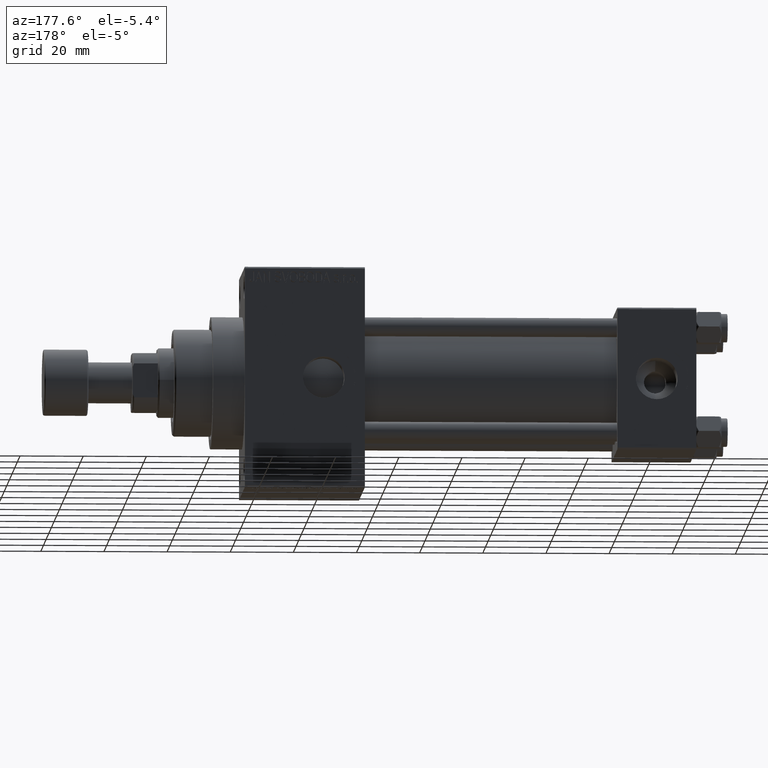
[diagram: clean part render]
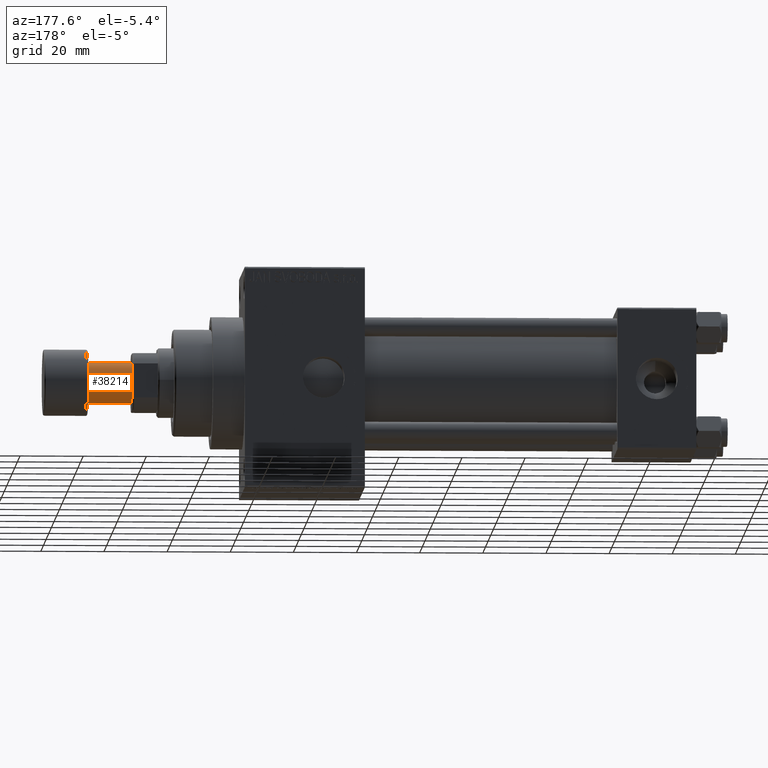
[diagram: same view with one face highlighted and labeled with its STEP entity id]
A machine part, auxiliary view. The second image highlights one B-rep face of the part: STEP entity #38214.
In plain terms, the highlighted cylindrical surface (edge-blend (fillet) strip) has radius 6.5 mm, axis along (1, 0, 0).
Its self-contained STEP definition (entity closure, byte-faithful):
#1387 = DIRECTION ( 'NONE',  ( -0.000000000000000000, -0.000000000000000000, 1.000000000000000000 ) ) ;
#2094 = EDGE_CURVE ( 'NONE', #27917, #36905, #41910, .T. ) ;
#2670 = CARTESIAN_POINT ( 'NONE',  ( -6.500000000000000888, 7.960204194457796463E-16, -27.50000000000000000 ) ) ;
#2906 = LINE ( 'NONE', #2670, #23533 ) ;
#4501 = CARTESIAN_POINT ( 'NONE',  ( 6.500000000000000888, 0.000000000000000000, -28.00000000000000000 ) ) ;
#4807 = EDGE_LOOP ( 'NONE', ( #25953, #35410, #32497, #26992 ) ) ;
#5141 = CARTESIAN_POINT ( 'NONE',  ( 0.000000000000000000, 0.000000000000000000, -14.00000000000000000 ) ) ;
#5991 = AXIS2_PLACEMENT_3D ( 'NONE', #14301, #11642, #22690 ) ;
#8477 = EDGE_CURVE ( 'NONE', #18794, #36905, #23771, .T. ) ;
#9900 = VECTOR ( 'NONE', #42987, 1000.000000000000000 ) ;
#11642 = DIRECTION ( 'NONE',  ( 0.000000000000000000, 0.000000000000000000, -1.000000000000000000 ) ) ;
#14301 = CARTESIAN_POINT ( 'NONE',  ( 0.000000000000000000, 0.000000000000000000, -28.00000000000000000 ) ) ;
#14678 = FACE_OUTER_BOUND ( 'NONE', #4807, .T. ) ;
#18794 = VERTEX_POINT ( 'NONE', #4501 ) ;
#22690 = DIRECTION ( 'NONE',  ( -1.000000000000000000, 0.000000000000000000, 0.000000000000000000 ) ) ;
#23533 = VECTOR ( 'NONE', #35855, 1000.000000000000000 ) ;
#23664 = DIRECTION ( 'NONE',  ( 0.000000000000000000, 0.000000000000000000, -1.000000000000000000 ) ) ;
#23771 = LINE ( 'NONE', #28333, #9900 ) ;
#24157 = VERTEX_POINT ( 'NONE', #47462 ) ;
#25485 = CARTESIAN_POINT ( 'NONE',  ( 6.500000000000000888, 0.000000000000000000, -14.00000000000000000 ) ) ;
#25953 = ORIENTED_EDGE ( 'NONE', *, *, #44796, .F. ) ;
#26992 = ORIENTED_EDGE ( 'NONE', *, *, #8477, .F. ) ;
#27520 = DIRECTION ( 'NONE',  ( -1.000000000000000000, 0.000000000000000000, 0.000000000000000000 ) ) ;
#27917 = VERTEX_POINT ( 'NONE', #28929 ) ;
#28333 = CARTESIAN_POINT ( 'NONE',  ( 6.500000000000000888, 0.000000000000000000, -27.50000000000000000 ) ) ;
#28929 = CARTESIAN_POINT ( 'NONE',  ( -6.500000000000000888, 7.960204194457796463E-16, -14.00000000000000000 ) ) ;
#29362 = CARTESIAN_POINT ( 'NONE',  ( 0.000000000000000000, 0.000000000000000000, -27.50000000000000000 ) ) ;
#32497 = ORIENTED_EDGE ( 'NONE', *, *, #2094, .T. ) ;
#33457 = AXIS2_PLACEMENT_3D ( 'NONE', #5141, #23664, #27520 ) ;
#33491 = EDGE_CURVE ( 'NONE', #24157, #27917, #2906, .T. ) ;
#35410 = ORIENTED_EDGE ( 'NONE', *, *, #33491, .T. ) ;
#35855 = DIRECTION ( 'NONE',  ( -0.000000000000000000, -0.000000000000000000, 1.000000000000000000 ) ) ;
#36905 = VERTEX_POINT ( 'NONE', #25485 ) ;
#38214 = ADVANCED_FACE ( 'NONE', ( #14678 ), #40159, .T. ) ;
#40159 = CYLINDRICAL_SURFACE ( 'NONE', #45854, 6.500000000000000888 ) ;
#41910 = CIRCLE ( 'NONE', #33457, 6.500000000000000888 ) ;
#42987 = DIRECTION ( 'NONE',  ( -0.000000000000000000, -0.000000000000000000, 1.000000000000000000 ) ) ;
#44008 = DIRECTION ( 'NONE',  ( 1.000000000000000000, 0.000000000000000000, 0.000000000000000000 ) ) ;
#44370 = CIRCLE ( 'NONE', #5991, 6.500000000000000888 ) ;
#44796 = EDGE_CURVE ( 'NONE', #24157, #18794, #44370, .T. ) ;
#45854 = AXIS2_PLACEMENT_3D ( 'NONE', #29362, #1387, #44008 ) ;
#47462 = CARTESIAN_POINT ( 'NONE',  ( -6.500000000000000888, 7.960204194457796463E-16, -28.00000000000000000 ) ) ;